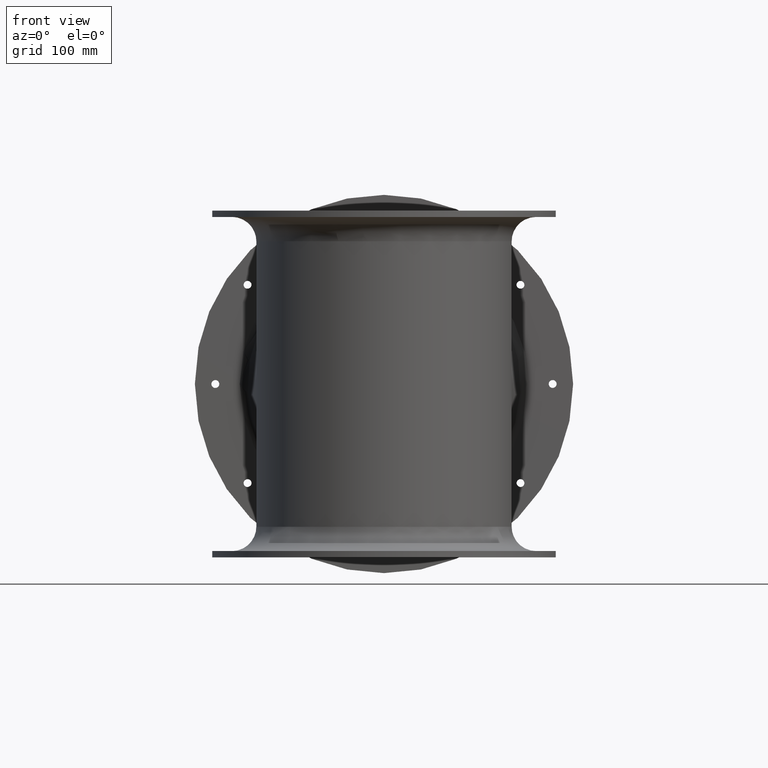
[diagram: clean part render]
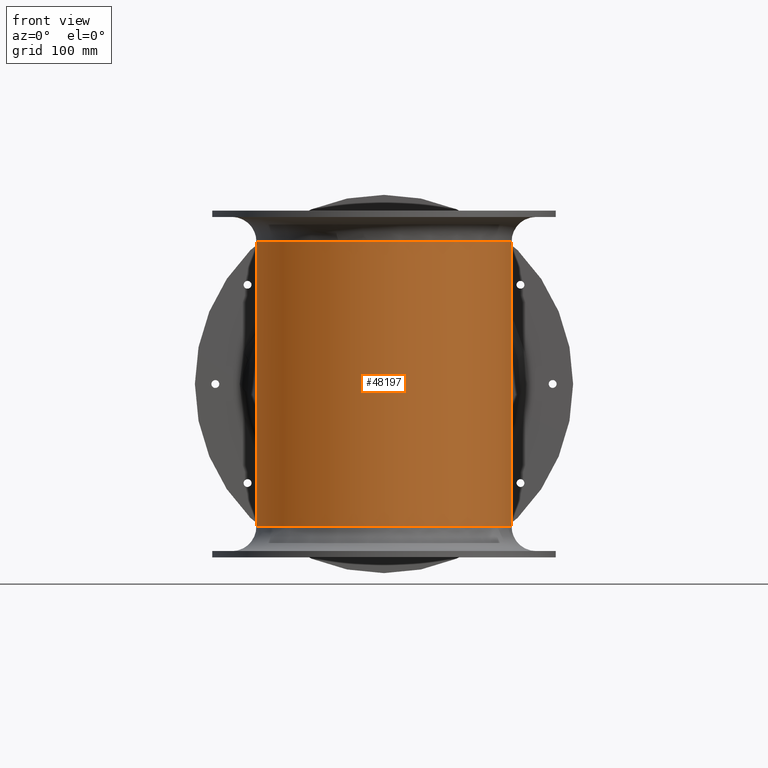
[diagram: same view with one face highlighted and labeled with its STEP entity id]
A machine part, front view. The second image highlights one B-rep face of the part: STEP entity #48197.
In plain terms, the highlighted cylindrical surface (bore or boss wall) has radius 202.5 mm, axis along (0, -0, 1).
Its self-contained STEP definition (entity closure, byte-faithful):
#4967=CIRCLE('',#50990,202.5);
#4968=CIRCLE('',#50991,202.5);
#11968=FACE_BOUND('',#15144,.T.);
#11969=FACE_BOUND('',#15145,.T.);
#12359=FACE_OUTER_BOUND('',#15143,.T.);
#15143=EDGE_LOOP('',(#30530));
#15144=EDGE_LOOP('',(#30531));
#15145=EDGE_LOOP('',(#30532));
#18287=B_SPLINE_CURVE_WITH_KNOTS('',3,(#69630,#69631,#69632,#69633,#69634,
#69635,#69636,#69637,#69638,#69639,#69640,#69641,#69642,#69643,#69644,#69645,
#69646,#69647,#69648,#69649,#69650,#69651,#69652,#69653,#69654,#69655,#69656,
#69657,#69658,#69659,#69660,#69661,#69662,#69663,#69664,#69665,#69666,#69667,
#69668,#69669,#69670,#69671,#69672,#69673,#69674,#69675,#69676,#69677,#69678,
#69679,#69680,#69681,#69682,#69683,#69684,#69685,#69686,#69687,#69688,#69689,
#69690,#69691,#69692,#69693,#69694,#69695,#69696,#69697,#69698,#69699,#69700,
#69701,#69702,#69703,#69704,#69705,#69706,#69707,#69708,#69709,#69710,#69711,
#69712,#69713,#69714,#69715,#69716,#69717,#69718,#69719,#69720,#69721,#69722,
#69723,#69724,#69725,#69726,#69727,#69728,#69729,#69730,#69731,#69732,#69733,
#69734,#69735,#69736,#69737,#69738,#69739,#69740,#69741,#69742,#69743,#69744,
#69745,#69746,#69747,#69748,#69749,#69750,#69751,#69752,#69753,#69754,#69755,
#69756,#69757,#69758,#69759,#69760,#69761,#69762,#69763,#69764,#69765,#69766,
#69767,#69768,#69769,#69770,#69771,#69772,#69773,#69774,#69775,#69776,#69777,
#69778,#69779,#69780,#69781,#69782,#69783,#69784,#69785,#69786,#69787,#69788,
#69789,#69790,#69791,#69792,#69793,#69794,#69795,#69796,#69797,#69798,#69799,
#69800,#69801,#69802,#69803,#69804,#69805,#69806,#69807,#69808,#69809,#69810,
#69811,#69812,#69813,#69814,#69815,#69816,#69817,#69818,#69819,#69820,#69821,
#69822,#69823,#69824,#69825,#69826,#69827,#69828,#69829,#69830,#69831,#69832,
#69833,#69834,#69835,#69836,#69837,#69838,#69839,#69840,#69841,#69842,#69843,
#69844,#69845,#69846,#69847,#69848,#69849,#69850,#69851,#69852,#69853,#69854,
#69855,#69856,#69857,#69858,#69859,#69860,#69861,#69862,#69863,#69864,#69865,
#69866,#69867,#69868,#69869,#69870,#69871,#69872,#69873,#69874,#69875,#69876,
#69877,#69878,#69879,#69880,#69881,#69882,#69883,#69884,#69885,#69886,#69887,
#69888,#69889,#69890,#69891,#69892,#69893,#69894,#69895,#69896,#69897,#69898,
#69899,#69900,#69901,#69902,#69903,#69904,#69905,#69906,#69907,#69908,#69909,
#69910,#69911,#69912,#69913,#69914,#69915,#69916,#69917,#69918,#69919,#69920,
#69921,#69922,#69923,#69924,#69925,#69926,#69927,#69928,#69929,#69930,#69931,
#69932,#69933,#69934,#69935,#69936,#69937,#69938,#69939,#69940,#69941,#69942,
#69943,#69944,#69945,#69946,#69947,#69948,#69949,#69950,#69951,#69952,#69953,
#69954,#69955,#69956,#69957,#69958,#69959,#69960,#69961,#69962,#69963,#69964,
#69965,#69966,#69967,#69968,#69969,#69970,#69971,#69972,#69973,#69974,#69975,
#69976,#69977,#69978,#69979,#69980,#69981,#69982,#69983,#69984,#69985,#69986,
#69987,#69988,#69989,#69990,#69991,#69992,#69993,#69994,#69995,#69996,#69997,
#69998,#69999,#70000,#70001,#70002,#70003,#70004,#70005,#70006,#70007,#70008,
#70009,#70010,#70011,#70012,#70013,#70014),.UNSPECIFIED.,.T.,.F.,(4,3,3,
3,3,3,3,3,3,3,3,3,3,3,3,3,3,3,3,3,3,3,3,3,3,3,3,3,3,3,3,3,3,3,3,3,3,3,3,
3,3,3,3,3,3,3,3,3,3,3,3,3,3,3,3,3,3,3,3,3,3,3,3,3,3,3,3,3,3,3,3,3,3,3,3,
3,3,3,3,3,3,3,3,3,3,3,3,3,3,3,3,3,3,3,3,3,3,3,3,3,3,3,3,3,3,3,3,3,3,3,3,
3,3,3,3,3,3,3,3,3,3,3,3,3,3,3,3,3,4),(-160.342906912036,-160.081610975274,
-159.806046325259,-159.70745696218,-159.627059865564,-158.911603294999,
-158.196065782003,-157.71663035812,-157.65844358391,-157.479094196927,-156.045520752024,
-154.613641021606,-151.752290572736,-149.810930225153,-148.890155718497,
-147.45892251172,-145.816008437067,-145.668549316929,-144.594002031974,
-143.161990087913,-137.436836950914,-136.959595278468,-136.665929451944,
-136.1641162625,-134.891639086557,-130.162442041686,-129.800813206733,-129.562154742946,
-127.892585473663,-126.461189080719,-126.039837570184,-125.983600632645,
-122.695283499125,-122.165629504571,-120.625039987267,-118.692210297802,
-118.34832113825,-116.439800674157,-116.069722114912,-114.530009733055,
-112.622185500934,-110.713585221901,-110.068461128252,-108.803075963811,
-106.894432287388,-103.077776392632,-102.68580357898,-101.884102439985,
-101.168158906038,-99.2597980532162,-95.4440953012599,-93.5352335895442,
-91.6495833604302,-91.6246814189812,-87.805743866731,-85.897824174083,-84.5253022285759,
-83.9893061310752,-83.7009996830874,-82.7160553985728,-82.2390318148518,
-81.7454708848339,-81.4439640252966,-81.025646101809,-80.8076057675436,
-80.531767047028,-80.287961013862,-80.1716033146539,-80.0854849546987,-79.8375311491397,
-79.5349982732622,-79.3190264793224,-78.8993080078128,-78.0180719655853,
-77.6264146846165,-76.3537563673086,-76.2634474649733,-75.636812081051,
-75.3979507631704,-74.4430331145185,-72.5348999443966,-69.6731482481115,
-68.9386351468239,-68.7183700297651,-64.9011242767384,-61.0844988520505,
-58.7703045195937,-57.2641197006221,-54.4022140550659,-53.4482350096057,
-51.6487655418366,-50.9021158366082,-48.3580124577464,-46.7305625843402,
-45.8116971581924,-43.9036909448839,-42.9208168368777,-41.9944043869412,
-40.7550662017537,-38.8470287143703,-38.1767120407175,-37.2227430335197,
-36.4198872014549,-34.3586547744628,-32.4507825263865,-31.5152553461049,
-30.5409726766878,-25.4522695863814,-24.2770105557074,-24.1785704467151,
-22.9049318856175,-17.1807867851427,-15.7491697433524,-14.2375590226819,
-11.4519378130212,-8.58974760449831,-7.63804363807765,-5.72603196125493,
-4.29487985096732,-3.23889387569538,-2.86323948060928,-2.77950123683371,
-1.47209831865792,-1.43167218082337,-1.27598788093155,-0.715991356617883,
-0.534179025333353,-0.212204773589796,0.),.UNSPECIFIED.);
#18689=VERTEX_POINT('',#69540);
#18692=VERTEX_POINT('',#70019);
#18693=VERTEX_POINT('',#70021);
#23263=EDGE_CURVE('',#18689,#18689,#18287,.T.);
#23265=EDGE_CURVE('',#18692,#18692,#4967,.T.);
#23266=EDGE_CURVE('',#18693,#18693,#4968,.T.);
#30530=ORIENTED_EDGE('',*,*,#23265,.F.);
#30531=ORIENTED_EDGE('',*,*,#23266,.T.);
#30532=ORIENTED_EDGE('',*,*,#23263,.F.);
#45257=CYLINDRICAL_SURFACE('',#50989,202.5);
#48197=ADVANCED_FACE('',(#12359,#11968,#11969),#45257,.T.);
#50989=AXIS2_PLACEMENT_3D('',#70018,#55992,#55993);
#50990=AXIS2_PLACEMENT_3D('',#70020,#55994,#55995);
#50991=AXIS2_PLACEMENT_3D('',#70022,#55996,#55997);
#55992=DIRECTION('center_axis',(3.33066907387543E-16,-1.9598292006493E-16,
1.));
#55993=DIRECTION('ref_axis',(1.,-9.99200722162641E-16,-3.33066907387544E-16));
#55994=DIRECTION('center_axis',(3.33066907387543E-16,-1.9598292006493E-16,
1.));
#55995=DIRECTION('ref_axis',(1.,-9.99200722162641E-16,-3.33066907387544E-16));
#55996=DIRECTION('center_axis',(3.33066907387543E-16,-1.9598292006493E-16,
1.));
#55997=DIRECTION('ref_axis',(1.,-9.99200722162641E-16,-3.33066907387544E-16));
#69540=CARTESIAN_POINT('',(-697.257227503305,516.280377813638,-216.1206322286));
#69630=CARTESIAN_POINT('Ctrl Pts',(-697.257227503275,516.280377814243,-216.120632228212));
#69631=CARTESIAN_POINT('Ctrl Pts',(-697.257227503263,516.280377814494,-215.226759886859));
#69632=CARTESIAN_POINT('Ctrl Pts',(-697.254672677007,516.332828295453,-214.331957878147));
#69633=CARTESIAN_POINT('Ctrl Pts',(-697.249581580822,516.434979875872,-213.444721295312));
#69634=CARTESIAN_POINT('Ctrl Pts',(-697.244212472691,516.542709696915,-212.509034956446));
#69635=CARTESIAN_POINT('Ctrl Pts',(-697.236066065964,516.704740011279,-211.578498886824));
#69636=CARTESIAN_POINT('Ctrl Pts',(-697.225100581869,516.914738041926,-210.661486591728));
#69637=CARTESIAN_POINT('Ctrl Pts',(-697.221177436819,516.98986949325,-210.333405112106));
#69638=CARTESIAN_POINT('Ctrl Pts',(-697.216892084135,517.071133220858,-210.007051641859));
#69639=CARTESIAN_POINT('Ctrl Pts',(-697.212259599667,517.157847090905,-209.682636379619));
#69640=CARTESIAN_POINT('Ctrl Pts',(-697.208481927413,517.228560027578,-209.418084055032));
#69641=CARTESIAN_POINT('Ctrl Pts',(-697.204470206979,517.302957156327,-209.154714933568));
#69642=CARTESIAN_POINT('Ctrl Pts',(-697.200231239416,517.380696508449,-208.892613591261));
#69643=CARTESIAN_POINT('Ctrl Pts',(-697.162508519025,518.072501717946,-206.560164592479));
#69644=CARTESIAN_POINT('Ctrl Pts',(-697.10661367971,519.029198560302,-204.328214727127));
#69645=CARTESIAN_POINT('Ctrl Pts',(-697.031516553899,520.130576948674,-202.160969686035));
#69646=CARTESIAN_POINT('Ctrl Pts',(-696.956410932054,521.232079940337,-199.993479455943));
#69647=CARTESIAN_POINT('Ctrl Pts',(-696.862005500284,522.478155201543,-197.890678223382));
#69648=CARTESIAN_POINT('Ctrl Pts',(-696.748959839294,523.786530942337,-195.850105959314));
#69649=CARTESIAN_POINT('Ctrl Pts',(-696.673215250912,524.663188932301,-194.48285041978));
#69650=CARTESIAN_POINT('Ctrl Pts',(-696.589248361336,525.567819467301,-193.143516657119));
#69651=CARTESIAN_POINT('Ctrl Pts',(-696.497260035757,526.488451098012,-191.830134326675));
#69652=CARTESIAN_POINT('Ctrl Pts',(-696.486095854589,526.600183736357,-191.670735422662));
#69653=CARTESIAN_POINT('Ctrl Pts',(-696.474811987746,526.712174697458,-191.511690367153));
#69654=CARTESIAN_POINT('Ctrl Pts',(-696.463409160411,526.824403862311,-191.352995040592));
#69655=CARTESIAN_POINT('Ctrl Pts',(-696.428262168327,527.170328381953,-190.86384763686));
#69656=CARTESIAN_POINT('Ctrl Pts',(-696.391985301662,527.518515927331,-190.37802303937));
#69657=CARTESIAN_POINT('Ctrl Pts',(-696.354531258763,527.869057724736,-189.893971529857));
#69658=CARTESIAN_POINT('Ctrl Pts',(-696.055154036422,530.671004363856,-186.024856604664));
#69659=CARTESIAN_POINT('Ctrl Pts',(-695.679356927366,533.623346504416,-182.26907170148));
#69660=CARTESIAN_POINT('Ctrl Pts',(-695.224267956936,536.632813399577,-178.572714386483));
#69661=CARTESIAN_POINT('Ctrl Pts',(-694.769716657445,539.638724719899,-174.880724182183));
#69662=CARTESIAN_POINT('Ctrl Pts',(-694.236908884312,542.701679636403,-171.247992504076));
#69663=CARTESIAN_POINT('Ctrl Pts',(-693.623449771287,545.791401300273,-167.646156314791));
#69664=CARTESIAN_POINT('Ctrl Pts',(-692.397563636351,551.965646442509,-160.448543709466));
#69665=CARTESIAN_POINT('Ctrl Pts',(-690.848696188197,558.246651552957,-153.374317144781));
#69666=CARTESIAN_POINT('Ctrl Pts',(-688.966142017064,564.524071094062,-146.385276333287));
#69667=CARTESIAN_POINT('Ctrl Pts',(-687.68887239025,568.783155606782,-141.64337318597));
#69668=CARTESIAN_POINT('Ctrl Pts',(-686.258923939882,573.040835204933,-136.940662162466));
#69669=CARTESIAN_POINT('Ctrl Pts',(-684.674226568624,577.278845479364,-132.285152186525));
#69670=CARTESIAN_POINT('Ctrl Pts',(-683.922614977279,579.288906014753,-130.077074275244));
#69671=CARTESIAN_POINT('Ctrl Pts',(-683.135884889896,581.295456528332,-127.878463004284));
#69672=CARTESIAN_POINT('Ctrl Pts',(-682.313941221743,583.296475336021,-125.690344687132));
#69673=CARTESIAN_POINT('Ctrl Pts',(-681.036328664645,586.406818361641,-122.289177981035));
#69674=CARTESIAN_POINT('Ctrl Pts',(-679.673533592299,589.503755378052,-118.913365891202));
#69675=CARTESIAN_POINT('Ctrl Pts',(-678.227915300939,592.575834831544,-115.571380351261));
#69676=CARTESIAN_POINT('Ctrl Pts',(-676.568488572851,596.102278005653,-111.735111702057));
#69677=CARTESIAN_POINT('Ctrl Pts',(-674.800251933672,599.59612560734,-107.943412143543));
#69678=CARTESIAN_POINT('Ctrl Pts',(-672.917784721667,603.059499357728,-104.192238591499));
#69679=CARTESIAN_POINT('Ctrl Pts',(-672.74882460193,603.370353135063,-103.855553453788));
#69680=CARTESIAN_POINT('Ctrl Pts',(-672.578924203415,603.680995218203,-103.519153899755));
#69681=CARTESIAN_POINT('Ctrl Pts',(-672.408077799914,603.991427301452,-103.18303595263));
#69682=CARTESIAN_POINT('Ctrl Pts',(-671.163105370583,606.25357257877,-100.733715577136));
#69683=CARTESIAN_POINT('Ctrl Pts',(-669.867947546818,608.504591770511,-98.299350094895));
#69684=CARTESIAN_POINT('Ctrl Pts',(-668.519539871023,610.745922949875,-95.8777837390035));
#69685=CARTESIAN_POINT('Ctrl Pts',(-666.722563670686,613.732867372316,-92.6506461401987));
#69686=CARTESIAN_POINT('Ctrl Pts',(-664.830856553981,616.702514116849,-89.4462371942141));
#69687=CARTESIAN_POINT('Ctrl Pts',(-662.844932868626,619.644761523188,-86.2744257389922));
#69688=CARTESIAN_POINT('Ctrl Pts',(-654.905252432154,631.407803750659,-73.593591351995));
#69689=CARTESIAN_POINT('Ctrl Pts',(-645.458052164794,642.732430302758,-61.4344539598268));
#69690=CARTESIAN_POINT('Ctrl Pts',(-634.463428603082,653.176048294548,-50.2349377768812));
#69691=CARTESIAN_POINT('Ctrl Pts',(-633.546930404528,654.046615351449,-49.3013599832685));
#69692=CARTESIAN_POINT('Ctrl Pts',(-632.61968833936,654.911062031034,-48.3744442906045));
#69693=CARTESIAN_POINT('Ctrl Pts',(-631.681807013742,655.769019580471,-47.4546667275533));
#69694=CARTESIAN_POINT('Ctrl Pts',(-631.104691245,656.296955063529,-46.8886909256342));
#69695=CARTESIAN_POINT('Ctrl Pts',(-630.52354790769,656.822434678858,-46.3254178963941));
#69696=CARTESIAN_POINT('Ctrl Pts',(-629.938153197321,657.345591855669,-45.7646955931267));
#69697=CARTESIAN_POINT('Ctrl Pts',(-628.937836646463,658.239557539669,-44.8065390015853));
#69698=CARTESIAN_POINT('Ctrl Pts',(-627.924936100867,659.126902745414,-43.8556738990506));
#69699=CARTESIAN_POINT('Ctrl Pts',(-626.89826739942,660.008207773159,-42.9113528276939));
#69700=CARTESIAN_POINT('Ctrl Pts',(-624.294883276945,662.242984691025,-40.5167824271104));
#69701=CARTESIAN_POINT('Ctrl Pts',(-621.602857459468,664.438767515243,-38.1642917248213));
#69702=CARTESIAN_POINT('Ctrl Pts',(-618.827282293965,666.583766841819,-35.8671305764916));
#69703=CARTESIAN_POINT('Ctrl Pts',(-608.511779494643,674.555716884045,-27.3296668642467));
#69704=CARTESIAN_POINT('Ctrl Pts',(-597.038036066904,681.821301904723,-19.5575522294114));
#69705=CARTESIAN_POINT('Ctrl Pts',(-584.55368607305,687.97701485389,-12.9754416934975));
#69706=CARTESIAN_POINT('Ctrl Pts',(-583.599041785535,688.447725480026,-12.4721256036728));
#69707=CARTESIAN_POINT('Ctrl Pts',(-582.638167058162,688.912151167305,-11.9755880313665));
#69708=CARTESIAN_POINT('Ctrl Pts',(-581.671159635096,689.370097771833,-11.4860492095826));
#69709=CARTESIAN_POINT('Ctrl Pts',(-581.032979037331,689.672321550939,-11.1629760144211));
#69710=CARTESIAN_POINT('Ctrl Pts',(-580.39212820257,689.971725280352,-10.8429510458017));
#69711=CARTESIAN_POINT('Ctrl Pts',(-579.74813292893,690.268479247797,-10.5257558129746));
#69712=CARTESIAN_POINT('Ctrl Pts',(-575.242972284826,692.344463885943,-8.30677139193657));
#69713=CARTESIAN_POINT('Ctrl Pts',(-570.583491070154,694.289813215606,-6.2263557495794));
#69714=CARTESIAN_POINT('Ctrl Pts',(-565.810596140456,696.071257425622,-4.32246743557627));
#69715=CARTESIAN_POINT('Ctrl Pts',(-561.718579886942,697.598569207985,-2.69017884751229));
#69716=CARTESIAN_POINT('Ctrl Pts',(-557.543298553905,699.005911195514,-1.1876403946383));
#69717=CARTESIAN_POINT('Ctrl Pts',(-553.29835310114,700.282014783239,0.17632524674454));
#69718=CARTESIAN_POINT('Ctrl Pts',(-552.048794147745,700.657653688673,0.577827574224976));
#69719=CARTESIAN_POINT('Ctrl Pts',(-550.793212975774,701.021937506695,0.967328054689069));
#69720=CARTESIAN_POINT('Ctrl Pts',(-549.531297095714,701.374789906948,1.34442474521418));
#69721=CARTESIAN_POINT('Ctrl Pts',(-549.362871724612,701.42188440619,1.39475508105239));
#69722=CARTESIAN_POINT('Ctrl Pts',(-549.194315995645,701.468780111037,1.44487077499946));
#69723=CARTESIAN_POINT('Ctrl Pts',(-549.025629213192,701.515476629167,1.49477066801659));
#69724=CARTESIAN_POINT('Ctrl Pts',(-539.162082917579,704.24594111322,4.41254464985427));
#69725=CARTESIAN_POINT('Ctrl Pts',(-528.845830134125,706.283922661835,6.58870728316398));
#69726=CARTESIAN_POINT('Ctrl Pts',(-518.392162752041,707.499603967,7.88797902769534));
#69727=CARTESIAN_POINT('Ctrl Pts',(-516.708375434138,707.69541551231,8.09725460591967));
#69728=CARTESIAN_POINT('Ctrl Pts',(-515.018622023611,707.870482130194,8.28452461113706));
#69729=CARTESIAN_POINT('Ctrl Pts',(-513.324494751934,708.024412374118,8.44905118196035));
#69730=CARTESIAN_POINT('Ctrl Pts',(-508.396834916344,708.472144898794,8.92760494146088));
#69731=CARTESIAN_POINT('Ctrl Pts',(-503.431955168454,708.740427839059,9.21338984145034));
#69732=CARTESIAN_POINT('Ctrl Pts',(-498.469613300467,708.825449651635,9.30338279208922));
#69733=CARTESIAN_POINT('Ctrl Pts',(-492.243839605406,708.932118353293,9.41628830318329));
#69734=CARTESIAN_POINT('Ctrl Pts',(-485.995009047588,708.750108188911,9.22346260966002));
#69735=CARTESIAN_POINT('Ctrl Pts',(-479.802557790707,708.284037221046,8.72592312640258));
#69736=CARTESIAN_POINT('Ctrl Pts',(-478.700796538847,708.201113850041,8.63740087549033));
#69737=CARTESIAN_POINT('Ctrl Pts',(-477.59989499451,708.109185502019,8.53926983377843));
#69738=CARTESIAN_POINT('Ctrl Pts',(-476.500232822539,708.008298586159,8.43151307443215));
#69739=CARTESIAN_POINT('Ctrl Pts',(-470.39731361006,707.448395087811,7.83348323067521));
#69740=CARTESIAN_POINT('Ctrl Pts',(-464.332625786008,706.610970167886,6.93838213522046));
#69741=CARTESIAN_POINT('Ctrl Pts',(-458.377518990521,705.51590289406,5.76887587276058));
#69742=CARTESIAN_POINT('Ctrl Pts',(-457.222772481646,705.303559916031,5.5420985335688));
#69743=CARTESIAN_POINT('Ctrl Pts',(-456.072138184755,705.081590037866,5.30502509042471));
#69744=CARTESIAN_POINT('Ctrl Pts',(-454.925821489709,704.850156506472,5.0578005516784));
#69745=CARTESIAN_POINT('Ctrl Pts',(-450.156569219361,703.88727696384,4.02922250008235));
#69746=CARTESIAN_POINT('Ctrl Pts',(-445.448528394885,702.757861539675,2.82274270512747));
#69747=CARTESIAN_POINT('Ctrl Pts',(-440.809802354673,701.469507757147,1.4459157149436));
#69748=CARTESIAN_POINT('Ctrl Pts',(-435.062057483634,699.873136516117,-0.260080759634924));
#69749=CARTESIAN_POINT('Ctrl Pts',(-429.421156478192,698.031336521754,-2.2276543748093));
#69750=CARTESIAN_POINT('Ctrl Pts',(-423.947378745246,695.980291964197,-4.41965332026488));
#69751=CARTESIAN_POINT('Ctrl Pts',(-418.471374440148,693.928413101903,-6.61254390656662));
#69752=CARTESIAN_POINT('Ctrl Pts',(-413.162319105302,691.667791607495,-9.03000104300617));
#69753=CARTESIAN_POINT('Ctrl Pts',(-408.051483308909,689.237913983325,-11.6277754784551));
#69754=CARTESIAN_POINT('Ctrl Pts',(-406.323974753475,688.416593449534,-12.5058466474593));
#69755=CARTESIAN_POINT('Ctrl Pts',(-404.619072122022,687.576024371686,-13.404511402225));
#69756=CARTESIAN_POINT('Ctrl Pts',(-402.935781790985,686.716795991585,-14.3233007980696));
#69757=CARTESIAN_POINT('Ctrl Pts',(-399.634074982462,685.031453813621,-16.1254695314864));
#69758=CARTESIAN_POINT('Ctrl Pts',(-396.410757008595,683.272033276337,-18.0075538199388));
#69759=CARTESIAN_POINT('Ctrl Pts',(-393.259121703285,681.440630193166,-19.9668627908504));
#69760=CARTESIAN_POINT('Ctrl Pts',(-388.505352681085,678.67823340529,-22.9221864208232));
#69761=CARTESIAN_POINT('Ctrl Pts',(-383.915140571764,675.751375157426,-26.0532394305556));
#69762=CARTESIAN_POINT('Ctrl Pts',(-379.506473182695,672.690233380637,-29.3296485319996));
#69763=CARTESIAN_POINT('Ctrl Pts',(-370.690596973654,666.568962579079,-35.8813827635546));
#69764=CARTESIAN_POINT('Ctrl Pts',(-362.601836381584,659.909332482535,-43.0146162181211));
#69765=CARTESIAN_POINT('Ctrl Pts',(-355.288699373491,652.939041075464,-50.4886839152465));
#69766=CARTESIAN_POINT('Ctrl Pts',(-354.537635885263,652.223188032869,-51.2562750802471));
#69767=CARTESIAN_POINT('Ctrl Pts',(-353.794720397658,651.504087799076,-52.0274574506805));
#69768=CARTESIAN_POINT('Ctrl Pts',(-353.059606024598,650.781624120593,-52.8023656934187));
#69769=CARTESIAN_POINT('Ctrl Pts',(-351.556078204174,649.303970738139,-54.3872838285134));
#69770=CARTESIAN_POINT('Ctrl Pts',(-350.084381883779,647.811498850562,-55.9886072321534));
#69771=CARTESIAN_POINT('Ctrl Pts',(-348.641845406717,646.302879325626,-57.6075929529576));
#69772=CARTESIAN_POINT('Ctrl Pts',(-347.353616398423,644.955636142939,-59.0533965098981));
#69773=CARTESIAN_POINT('Ctrl Pts',(-346.088670322367,643.595497437201,-60.5132860832147));
#69774=CARTESIAN_POINT('Ctrl Pts',(-344.847150810509,642.223444682952,-61.9864392457314));
#69775=CARTESIAN_POINT('Ctrl Pts',(-341.537857378691,638.566212457139,-65.9131564968218));
#69776=CARTESIAN_POINT('Ctrl Pts',(-338.395000903268,634.824241429661,-69.934124886938));
#69777=CARTESIAN_POINT('Ctrl Pts',(-335.419046850743,631.014602922636,-74.031682623307));
#69778=CARTESIAN_POINT('Ctrl Pts',(-329.468727732047,623.397360033944,-82.2246102385667));
#69779=CARTESIAN_POINT('Ctrl Pts',(-324.185660221192,615.510279412486,-90.7238122951142));
#69780=CARTESIAN_POINT('Ctrl Pts',(-319.546500669182,607.459597769196,-99.430261345612));
#69781=CARTESIAN_POINT('Ctrl Pts',(-317.225692519535,603.432125258605,-103.7857911963));
#69782=CARTESIAN_POINT('Ctrl Pts',(-315.066247072778,599.363475319532,-108.193158057072));
#69783=CARTESIAN_POINT('Ctrl Pts',(-313.069780644655,595.278863492168,-112.631120063657));
#69784=CARTESIAN_POINT('Ctrl Pts',(-311.097590959826,591.243919954437,-117.015117093487));
#69785=CARTESIAN_POINT('Ctrl Pts',(-309.283838639874,587.193732359801,-121.428980142706));
#69786=CARTESIAN_POINT('Ctrl Pts',(-307.616536728959,583.124038382368,-125.879493449313));
#69787=CARTESIAN_POINT('Ctrl Pts',(-307.594518300555,583.07029390761,-125.938267033124));
#69788=CARTESIAN_POINT('Ctrl Pts',(-307.572525166151,583.016545261566,-125.997048330777));
#69789=CARTESIAN_POINT('Ctrl Pts',(-307.550557303811,582.962792429531,-126.055837353372));
#69790=CARTESIAN_POINT('Ctrl Pts',(-304.181587273736,574.719310321183,-135.071664754093));
#69791=CARTESIAN_POINT('Ctrl Pts',(-301.408174645574,566.376097017894,-144.268237772602));
#69792=CARTESIAN_POINT('Ctrl Pts',(-299.208138936492,558.042292267241,-153.653722888312));
#69793=CARTESIAN_POINT('Ctrl Pts',(-298.10901348695,553.878770350239,-158.342658392578));
#69794=CARTESIAN_POINT('Ctrl Pts',(-297.153385894263,549.717657264329,-163.078918161569));
#69795=CARTESIAN_POINT('Ctrl Pts',(-296.34073634828,545.604438275676,-167.871412779288));
#69796=CARTESIAN_POINT('Ctrl Pts',(-295.756131377659,542.645465028345,-171.319044281752));
#69797=CARTESIAN_POINT('Ctrl Pts',(-295.245472196103,539.711292400477,-174.795794691275));
#69798=CARTESIAN_POINT('Ctrl Pts',(-294.80683359862,536.829789547561,-178.331343174923));
#69799=CARTESIAN_POINT('Ctrl Pts',(-294.635536828296,535.704507515345,-179.712042548047));
#69800=CARTESIAN_POINT('Ctrl Pts',(-294.475317144032,534.588174394351,-181.101718696434));
#69801=CARTESIAN_POINT('Ctrl Pts',(-294.325840594861,533.482416512275,-182.501861437363));
#69802=CARTESIAN_POINT('Ctrl Pts',(-294.245438791285,532.887641421929,-183.254982928724));
#69803=CARTESIAN_POINT('Ctrl Pts',(-294.168146336466,532.295925502157,-184.011132511595));
#69804=CARTESIAN_POINT('Ctrl Pts',(-294.094005799825,531.708414075421,-184.771029294196));
#69805=CARTESIAN_POINT('Ctrl Pts',(-293.8407187217,529.701292743625,-187.367072490829));
#69806=CARTESIAN_POINT('Ctrl Pts',(-293.623903295199,527.737704107688,-190.012124870294));
#69807=CARTESIAN_POINT('Ctrl Pts',(-293.442628730554,525.864932667358,-192.733881957515));
#69808=CARTESIAN_POINT('Ctrl Pts',(-293.354834685932,524.957920810949,-194.052070549679));
#69809=CARTESIAN_POINT('Ctrl Pts',(-293.275333990889,524.072226389715,-195.388267085493));
#69810=CARTESIAN_POINT('Ctrl Pts',(-293.204155074178,523.220562298817,-196.747470824976));
#69811=CARTESIAN_POINT('Ctrl Pts',(-293.130508542794,522.339372908793,-198.153795133954));
#69812=CARTESIAN_POINT('Ctrl Pts',(-293.065799677112,521.494619560397,-199.584751105357));
#69813=CARTESIAN_POINT('Ctrl Pts',(-293.009991479212,520.709288972542,-201.051712114824));
#69814=CARTESIAN_POINT('Ctrl Pts',(-292.97589932673,520.229545652434,-201.947850322141));
#69815=CARTESIAN_POINT('Ctrl Pts',(-292.945115553994,519.772073236636,-202.85818402579));
#69816=CARTESIAN_POINT('Ctrl Pts',(-292.917499244143,519.342358381658,-203.784734529921));
#69817=CARTESIAN_POINT('Ctrl Pts',(-292.879183706616,518.746161578368,-205.070253152911));
#69818=CARTESIAN_POINT('Ctrl Pts',(-292.847012020579,518.203448032348,-206.387002639643));
#69819=CARTESIAN_POINT('Ctrl Pts',(-292.821344418068,517.747943964932,-207.733559865433));
#69820=CARTESIAN_POINT('Ctrl Pts',(-292.807965663975,517.51052105393,-208.435427443018));
#69821=CARTESIAN_POINT('Ctrl Pts',(-292.79627303964,517.295547499469,-209.147058526694));
#69822=CARTESIAN_POINT('Ctrl Pts',(-292.7863366142,517.108698487599,-209.867647842154));
#69823=CARTESIAN_POINT('Ctrl Pts',(-292.773766229507,516.872319321619,-210.779251814251));
#69824=CARTESIAN_POINT('Ctrl Pts',(-292.763997986489,516.680999728265,-211.705206747662));
#69825=CARTESIAN_POINT('Ctrl Pts',(-292.757016608002,516.542400884546,-212.637196152517));
#69826=CARTESIAN_POINT('Ctrl Pts',(-292.750845965273,516.419897291775,-213.460955193038));
#69827=CARTESIAN_POINT('Ctrl Pts',(-292.746803245902,516.337638853325,-214.292969517544));
#69828=CARTESIAN_POINT('Ctrl Pts',(-292.745040554852,516.301796155704,-215.126137604619));
#69829=CARTESIAN_POINT('Ctrl Pts',(-292.744199301368,516.284690041575,-215.523771413787));
#69830=CARTESIAN_POINT('Ctrl Pts',(-292.74385443996,516.277648822752,-215.922152112048));
#69831=CARTESIAN_POINT('Ctrl Pts',(-292.744024048779,516.281104868457,-216.32040830759));
#69832=CARTESIAN_POINT('Ctrl Pts',(-292.744149579221,516.283662748082,-216.615164654918));
#69833=CARTESIAN_POINT('Ctrl Pts',(-292.744557017788,516.29196855135,-216.909852988603));
#69834=CARTESIAN_POINT('Ctrl Pts',(-292.745234059132,516.305730107016,-217.204093534794));
#69835=CARTESIAN_POINT('Ctrl Pts',(-292.747183410904,516.345352669494,-218.051277145999));
#69836=CARTESIAN_POINT('Ctrl Pts',(-292.751491802022,516.432949563155,-218.897080900722));
#69837=CARTESIAN_POINT('Ctrl Pts',(-292.758007542418,516.562054549307,-219.734083175255));
#69838=CARTESIAN_POINT('Ctrl Pts',(-292.76595751389,516.719577853548,-220.75532463053));
#69839=CARTESIAN_POINT('Ctrl Pts',(-292.777264168473,516.940253175571,-221.76954313252));
#69840=CARTESIAN_POINT('Ctrl Pts',(-292.791933996641,517.213442600393,-222.765143802801));
#69841=CARTESIAN_POINT('Ctrl Pts',(-292.802406475366,517.408466727914,-223.475881973602));
#69842=CARTESIAN_POINT('Ctrl Pts',(-292.814598350277,517.6302212582,-224.177140752706));
#69843=CARTESIAN_POINT('Ctrl Pts',(-292.828456271224,517.873459167714,-224.86918705782));
#69844=CARTESIAN_POINT('Ctrl Pts',(-292.855387683385,518.346166467739,-226.214106281287));
#69845=CARTESIAN_POINT('Ctrl Pts',(-292.888804292307,518.902584577359,-227.52238200085));
#69846=CARTESIAN_POINT('Ctrl Pts',(-292.928256462743,519.508673303933,-228.801279471466));
#69847=CARTESIAN_POINT('Ctrl Pts',(-293.011089782915,520.781210175432,-231.486437790486));
#69848=CARTESIAN_POINT('Ctrl Pts',(-293.120735802861,522.272938679204,-234.041753762422));
#69849=CARTESIAN_POINT('Ctrl Pts',(-293.260518311942,523.881894662922,-236.538118295759));
#69850=CARTESIAN_POINT('Ctrl Pts',(-293.322643366764,524.596980401119,-237.647604629253));
#69851=CARTESIAN_POINT('Ctrl Pts',(-293.390725230658,525.336204496177,-238.743724854482));
#69852=CARTESIAN_POINT('Ctrl Pts',(-293.464604791403,526.09065213618,-239.831142097151));
#69853=CARTESIAN_POINT('Ctrl Pts',(-293.704670384535,528.542168067783,-243.364615533015));
#69854=CARTESIAN_POINT('Ctrl Pts',(-294.007296997462,531.154621836827,-246.805690775106));
#69855=CARTESIAN_POINT('Ctrl Pts',(-294.367634446083,533.789814093354,-250.13084832623));
#69856=CARTESIAN_POINT('Ctrl Pts',(-294.393204293867,533.976809547588,-250.366804296855));
#69857=CARTESIAN_POINT('Ctrl Pts',(-294.419056064251,534.163919220038,-250.602179465878));
#69858=CARTESIAN_POINT('Ctrl Pts',(-294.445192588321,534.351153953045,-250.837031648373));
#69859=CARTESIAN_POINT('Ctrl Pts',(-294.626548693547,535.650338261209,-252.466623900489));
#69860=CARTESIAN_POINT('Ctrl Pts',(-294.821920126315,536.957986428715,-254.073354557918));
#69861=CARTESIAN_POINT('Ctrl Pts',(-295.03282269048,538.279057149057,-255.676627770403));
#69862=CARTESIAN_POINT('Ctrl Pts',(-295.11321467873,538.78262381856,-256.28776458502));
#69863=CARTESIAN_POINT('Ctrl Pts',(-295.195870307085,539.288139604974,-256.898400256868));
#69864=CARTESIAN_POINT('Ctrl Pts',(-295.28071279756,539.794864655793,-257.507484730457));
#69865=CARTESIAN_POINT('Ctrl Pts',(-295.619895350132,541.82064554964,-259.942477212749));
#69866=CARTESIAN_POINT('Ctrl Pts',(-295.994065872341,543.865751286844,-262.352669298201));
#69867=CARTESIAN_POINT('Ctrl Pts',(-296.403826843419,545.922431418631,-264.748259445115));
#69868=CARTESIAN_POINT('Ctrl Pts',(-297.222618392449,550.032125679003,-269.535169633441));
#69869=CARTESIAN_POINT('Ctrl Pts',(-298.183856316665,554.187989711491,-274.263769390239));
#69870=CARTESIAN_POINT('Ctrl Pts',(-299.290157871336,558.351989689616,-278.949191196636));
#69871=CARTESIAN_POINT('Ctrl Pts',(-300.949350426791,564.597011885824,-285.976223697418));
#69872=CARTESIAN_POINT('Ctrl Pts',(-302.934937415248,570.860273478803,-292.906098897726));
#69873=CARTESIAN_POINT('Ctrl Pts',(-305.248106557721,577.06752798038,-299.724505753931));
#69874=CARTESIAN_POINT('Ctrl Pts',(-305.841817410708,578.660716432178,-301.474555966985));
#69875=CARTESIAN_POINT('Ctrl Pts',(-306.457004228545,580.250252452624,-303.217269869763));
#69876=CARTESIAN_POINT('Ctrl Pts',(-307.09443861772,581.837093920793,-304.954261363021));
#69877=CARTESIAN_POINT('Ctrl Pts',(-307.285591859375,582.312954489008,-305.475148783438));
#69878=CARTESIAN_POINT('Ctrl Pts',(-307.478776110034,582.788645330784,-305.995600801722));
#69879=CARTESIAN_POINT('Ctrl Pts',(-307.674017450449,583.264192816612,-306.515662674464));
#69880=CARTESIAN_POINT('Ctrl Pts',(-311.057595329071,591.50554144629,-315.528455991644));
#69881=CARTESIAN_POINT('Ctrl Pts',(-315.060009791661,599.7032968236,-324.424021451407));
#69882=CARTESIAN_POINT('Ctrl Pts',(-319.70963485041,607.742170268497,-333.116386286016));
#69883=CARTESIAN_POINT('Ctrl Pts',(-324.358504313534,615.779737341907,-341.807338552354));
#69884=CARTESIAN_POINT('Ctrl Pts',(-329.655082854496,623.658573960062,-350.295051803324));
#69885=CARTESIAN_POINT('Ctrl Pts',(-335.60232635761,631.248871533366,-358.459540149564));
#69886=CARTESIAN_POINT('Ctrl Pts',(-339.208411754311,635.851215664959,-363.410042374923));
#69887=CARTESIAN_POINT('Ctrl Pts',(-343.05272809366,640.348010366032,-368.241754293611));
#69888=CARTESIAN_POINT('Ctrl Pts',(-347.152137802382,644.728139210768,-372.943085982997));
#69889=CARTESIAN_POINT('Ctrl Pts',(-349.820223443862,647.578929863288,-376.002930318536));
#69890=CARTESIAN_POINT('Ctrl Pts',(-352.600073463159,650.38405092296,-379.011485869253));
#69891=CARTESIAN_POINT('Ctrl Pts',(-355.497865752857,653.13811715396,-381.964573021954));
#69892=CARTESIAN_POINT('Ctrl Pts',(-361.003968330094,658.371125477678,-387.575741510496));
#69893=CARTESIAN_POINT('Ctrl Pts',(-366.936814531898,663.418336823004,-392.986531543705));
#69894=CARTESIAN_POINT('Ctrl Pts',(-373.276235180286,668.186642806878,-398.090977956028));
#69895=CARTESIAN_POINT('Ctrl Pts',(-375.38939864824,669.776095624101,-399.792478815636));
#69896=CARTESIAN_POINT('Ctrl Pts',(-377.547723884378,671.334648148061,-401.459958680179));
#69897=CARTESIAN_POINT('Ctrl Pts',(-379.747825696867,672.857556339829,-403.08975259729));
#69898=CARTESIAN_POINT('Ctrl Pts',(-383.897828840435,675.730184209741,-406.163996634992));
#69899=CARTESIAN_POINT('Ctrl Pts',(-388.196000932635,678.476401022377,-409.104114713296));
#69900=CARTESIAN_POINT('Ctrl Pts',(-392.654145185595,681.087679733065,-411.897543824993));
#69901=CARTESIAN_POINT('Ctrl Pts',(-394.503952671612,682.171171570257,-413.056614906877));
#69902=CARTESIAN_POINT('Ctrl Pts',(-396.383009445719,683.232359520656,-414.191507106805));
#69903=CARTESIAN_POINT('Ctrl Pts',(-398.292312752061,684.270189063948,-415.301128083549));
#69904=CARTESIAN_POINT('Ctrl Pts',(-404.797994009182,687.806446601163,-419.082004787074));
#69905=CARTESIAN_POINT('Ctrl Pts',(-411.656541521614,691.06892398192,-422.569118924341));
#69906=CARTESIAN_POINT('Ctrl Pts',(-418.782237791898,693.963827394761,-425.664742294358));
#69907=CARTESIAN_POINT('Ctrl Pts',(-423.340509122127,695.815682249361,-427.644996675333));
#69908=CARTESIAN_POINT('Ctrl Pts',(-428.007574253797,697.518130387225,-429.46513487056));
#69909=CARTESIAN_POINT('Ctrl Pts',(-432.774759076611,699.057510317497,-431.110144650347));
#69910=CARTESIAN_POINT('Ctrl Pts',(-435.466332798984,699.926651062626,-432.038924477622));
#69911=CARTESIAN_POINT('Ctrl Pts',(-438.194225403403,700.74524007182,-432.913404286056));
#69912=CARTESIAN_POINT('Ctrl Pts',(-440.956653315527,701.510234439971,-433.730355162486));
#69913=CARTESIAN_POINT('Ctrl Pts',(-446.692781229543,703.09873038948,-435.426737792456));
#69914=CARTESIAN_POINT('Ctrl Pts',(-452.578325710928,704.454615697008,-436.874815891194));
#69915=CARTESIAN_POINT('Ctrl Pts',(-458.544881764426,705.546606060461,-438.042111513795));
#69916=CARTESIAN_POINT('Ctrl Pts',(-461.618442750782,706.109124697426,-438.643422262073));
#69917=CARTESIAN_POINT('Ctrl Pts',(-464.713404412672,706.601974317893,-439.170286897882));
#69918=CARTESIAN_POINT('Ctrl Pts',(-467.823351826621,707.023166719292,-439.620378113195));
#69919=CARTESIAN_POINT('Ctrl Pts',(-470.754646871899,707.420163528239,-440.044613630314));
#69920=CARTESIAN_POINT('Ctrl Pts',(-473.706045454314,707.754397087434,-440.402076485214));
#69921=CARTESIAN_POINT('Ctrl Pts',(-476.670218688043,708.023821450345,-440.689737145055));
#69922=CARTESIAN_POINT('Ctrl Pts',(-480.635637197178,708.384252596319,-441.07456448642));
#69923=CARTESIAN_POINT('Ctrl Pts',(-484.623978110015,708.628507471356,-441.334387213552));
#69924=CARTESIAN_POINT('Ctrl Pts',(-488.613151838446,708.754400595573,-441.468177428509));
#69925=CARTESIAN_POINT('Ctrl Pts',(-494.754730552394,708.948220816138,-441.674155706782));
#69926=CARTESIAN_POINT('Ctrl Pts',(-500.926780650865,708.861437999619,-441.583183472444));
#69927=CARTESIAN_POINT('Ctrl Pts',(-507.052673484719,708.496199628988,-441.193564243578));
#69928=CARTESIAN_POINT('Ctrl Pts',(-509.204773815396,708.367886966731,-441.056686290597));
#69929=CARTESIAN_POINT('Ctrl Pts',(-511.3547482463,708.205184190775,-440.883296966063));
#69930=CARTESIAN_POINT('Ctrl Pts',(-513.499342213105,708.008449115629,-440.673155976121));
#69931=CARTESIAN_POINT('Ctrl Pts',(-516.551446177948,707.728463294457,-440.37409137065));
#69932=CARTESIAN_POINT('Ctrl Pts',(-519.592678069729,707.379489948086,-440.000563053783));
#69933=CARTESIAN_POINT('Ctrl Pts',(-522.613615584598,706.963669237044,-439.556139879686));
#69934=CARTESIAN_POINT('Ctrl Pts',(-525.156022396368,706.613716481311,-439.182115425498));
#69935=CARTESIAN_POINT('Ctrl Pts',(-527.684039014042,706.216458608409,-438.757889112099));
#69936=CARTESIAN_POINT('Ctrl Pts',(-530.193435241297,705.773607148459,-438.284945843486));
#69937=CARTESIAN_POINT('Ctrl Pts',(-536.635997740328,704.636641141447,-437.070722862899));
#69938=CARTESIAN_POINT('Ctrl Pts',(-542.987031247144,703.192987688087,-435.531316606856));
#69939=CARTESIAN_POINT('Ctrl Pts',(-549.199664664657,701.467215906342,-433.686292708441));
#69940=CARTESIAN_POINT('Ctrl Pts',(-554.950064633884,699.869845301365,-431.97854260383));
#69941=CARTESIAN_POINT('Ctrl Pts',(-560.581909813167,698.029824250979,-430.009034724988));
#69942=CARTESIAN_POINT('Ctrl Pts',(-566.028893615449,695.989636518589,-427.828878166064));
#69943=CARTESIAN_POINT('Ctrl Pts',(-568.69982789982,694.989228300244,-426.759836085181));
#69944=CARTESIAN_POINT('Ctrl Pts',(-571.326435661095,693.94112513688,-425.640174567212));
#69945=CARTESIAN_POINT('Ctrl Pts',(-573.910726027596,692.847640491392,-424.471484026747));
#69946=CARTESIAN_POINT('Ctrl Pts',(-576.602074146489,691.70885675338,-423.254378887008));
#69947=CARTESIAN_POINT('Ctrl Pts',(-579.250718612853,690.519509261254,-421.982852936827));
#69948=CARTESIAN_POINT('Ctrl Pts',(-581.858955944712,689.281044881523,-420.658199282835));
#69949=CARTESIAN_POINT('Ctrl Pts',(-595.481845674259,682.812514018562,-413.739499654639));
#69950=CARTESIAN_POINT('Ctrl Pts',(-607.990754703491,674.983557209309,-405.368481557066));
#69951=CARTESIAN_POINT('Ctrl Pts',(-619.057595055499,666.405513570145,-396.182426780523));
#69952=CARTESIAN_POINT('Ctrl Pts',(-621.613531967893,664.424375532901,-394.060865816795));
#69953=CARTESIAN_POINT('Ctrl Pts',(-624.093458078201,662.404247114584,-391.895956107578));
#69954=CARTESIAN_POINT('Ctrl Pts',(-626.501820710007,660.347636129664,-389.691951258317));
#69955=CARTESIAN_POINT('Ctrl Pts',(-626.70354600952,660.175373671579,-389.507343038411));
#69956=CARTESIAN_POINT('Ctrl Pts',(-626.904787534914,660.002838904149,-389.322443348896));
#69957=CARTESIAN_POINT('Ctrl Pts',(-627.105547436537,659.830032925641,-389.1372544586));
#69958=CARTESIAN_POINT('Ctrl Pts',(-629.703020710857,657.594233310321,-386.741242160543));
#69959=CARTESIAN_POINT('Ctrl Pts',(-632.219925285953,655.313154099944,-384.296814640069));
#69960=CARTESIAN_POINT('Ctrl Pts',(-634.661949631056,652.987220689037,-381.803102694367));
#69961=CARTESIAN_POINT('Ctrl Pts',(-645.63719968804,642.533720971976,-370.595551783149));
#69962=CARTESIAN_POINT('Ctrl Pts',(-655.093663786114,631.167444961339,-358.390825569027));
#69963=CARTESIAN_POINT('Ctrl Pts',(-663.019761034409,619.385312679093,-345.686595321701));
#69964=CARTESIAN_POINT('Ctrl Pts',(-665.002089521261,616.438584203868,-342.509248799966));
#69965=CARTESIAN_POINT('Ctrl Pts',(-666.889121298267,613.466100103236,-339.300740030179));
#69966=CARTESIAN_POINT('Ctrl Pts',(-668.682344939239,610.474828448061,-336.068579428935));
#69967=CARTESIAN_POINT('Ctrl Pts',(-670.575767552358,607.316415150084,-332.655817165599));
#69968=CARTESIAN_POINT('Ctrl Pts',(-672.364667071592,604.137127148103,-329.21668323566));
#69969=CARTESIAN_POINT('Ctrl Pts',(-674.053399416454,600.940300937328,-325.751832508985));
#69970=CARTESIAN_POINT('Ctrl Pts',(-677.165423281436,595.049136780736,-319.366748346409));
#69971=CARTESIAN_POINT('Ctrl Pts',(-679.945941687394,589.082555786134,-312.877930163745));
#69972=CARTESIAN_POINT('Ctrl Pts',(-682.410913347248,583.059972465437,-306.290611517201));
#69973=CARTESIAN_POINT('Ctrl Pts',(-684.943640239423,576.871845037798,-299.522225756362));
#69974=CARTESIAN_POINT('Ctrl Pts',(-687.141602938709,570.624164430652,-292.649853309336));
#69975=CARTESIAN_POINT('Ctrl Pts',(-689.007933921704,564.384532662379,-285.700522344122));
#69976=CARTESIAN_POINT('Ctrl Pts',(-689.628505745994,562.309799024766,-283.389807345562));
#69977=CARTESIAN_POINT('Ctrl Pts',(-690.212532881627,560.235966679575,-281.070591892692));
#69978=CARTESIAN_POINT('Ctrl Pts',(-690.760466653414,558.165663523809,-278.740457852023));
#69979=CARTESIAN_POINT('Ctrl Pts',(-691.861287714108,554.006340931855,-274.059124526201));
#69980=CARTESIAN_POINT('Ctrl Pts',(-692.817516377938,549.856524016106,-269.325845265124));
#69981=CARTESIAN_POINT('Ctrl Pts',(-693.634473548996,545.735838735341,-264.522784938634));
#69982=CARTESIAN_POINT('Ctrl Pts',(-694.245970849744,542.651481298153,-260.927665721833));
#69983=CARTESIAN_POINT('Ctrl Pts',(-694.778879846867,539.583373390105,-257.293408614599));
#69984=CARTESIAN_POINT('Ctrl Pts',(-695.23214745275,536.580660984309,-253.602953169831));
#69985=CARTESIAN_POINT('Ctrl Pts',(-695.566594246642,534.365087834885,-250.87992382583));
#69986=CARTESIAN_POINT('Ctrl Pts',(-695.85781965424,532.185154786284,-248.126283205993));
#69987=CARTESIAN_POINT('Ctrl Pts',(-696.10778637262,530.064926717338,-245.313540088139));
#69988=CARTESIAN_POINT('Ctrl Pts',(-696.19670904639,529.310680911679,-244.312940327145));
#69989=CARTESIAN_POINT('Ctrl Pts',(-696.28034238229,528.564772131019,-243.304895954065));
#69990=CARTESIAN_POINT('Ctrl Pts',(-696.358851091749,527.828588826624,-242.288245725041));
#69991=CARTESIAN_POINT('Ctrl Pts',(-696.376351702782,527.664484006307,-242.061621184437));
#69992=CARTESIAN_POINT('Ctrl Pts',(-696.393597860501,527.500862073898,-241.834569526133));
#69993=CARTESIAN_POINT('Ctrl Pts',(-696.410585557294,527.337799052885,-241.607056784866));
#69994=CARTESIAN_POINT('Ctrl Pts',(-696.675814004407,524.791900549338,-238.054906555257));
#69995=CARTESIAN_POINT('Ctrl Pts',(-696.878214677238,522.348741029997,-234.371586849393));
#69996=CARTESIAN_POINT('Ctrl Pts',(-697.018122531881,520.32562698205,-230.451766514215));
#69997=CARTESIAN_POINT('Ctrl Pts',(-697.022448615399,520.263070377487,-230.330561952903));
#69998=CARTESIAN_POINT('Ctrl Pts',(-697.026718054727,520.200910682502,-230.209135972997));
#69999=CARTESIAN_POINT('Ctrl Pts',(-697.030931646581,520.139152548402,-230.087478702188));
#70000=CARTESIAN_POINT('Ctrl Pts',(-697.047158526836,519.901317019582,-229.618966792638));
#70001=CARTESIAN_POINT('Ctrl Pts',(-697.062556035448,519.669434023581,-229.147026488787));
#70002=CARTESIAN_POINT('Ctrl Pts',(-697.077099261486,519.44491917459,-228.671049260461));
#70003=CARTESIAN_POINT('Ctrl Pts',(-697.129411254662,518.637339122013,-226.958958871767));
#70004=CARTESIAN_POINT('Ctrl Pts',(-697.17070318591,517.92221525524,-225.184180156752));
#70005=CARTESIAN_POINT('Ctrl Pts',(-697.200228276429,517.380750847169,-223.352152542545));
#70006=CARTESIAN_POINT('Ctrl Pts',(-697.209814095815,517.204955280474,-222.757353830313));
#70007=CARTESIAN_POINT('Ctrl Pts',(-697.218176715566,517.047394787582,-222.156543366231));
#70008=CARTESIAN_POINT('Ctrl Pts',(-697.225340992736,516.910132969409,-221.551992473237));
#70009=CARTESIAN_POINT('Ctrl Pts',(-697.238028321284,516.667053906032,-220.481384005498));
#70010=CARTESIAN_POINT('Ctrl Pts',(-697.247000500618,516.487169997881,-219.391508972606));
#70011=CARTESIAN_POINT('Ctrl Pts',(-697.252152240214,516.383267254861,-218.295648430275));
#70012=CARTESIAN_POINT('Ctrl Pts',(-697.255547616487,516.314787685645,-217.573395526473));
#70013=CARTESIAN_POINT('Ctrl Pts',(-697.257227503285,516.28037781404,-216.846567656697));
#70014=CARTESIAN_POINT('Ctrl Pts',(-697.257227503275,516.280377814243,-216.120632228212));
#70018=CARTESIAN_POINT('Origin',(-495.000607936234,506.355165407791,-102.920632227869));
#70019=CARTESIAN_POINT('',(-292.500607936234,506.355165407791,10.2793677721314));
#70020=CARTESIAN_POINT('Origin',(-495.000607936234,506.355165407791,10.2793677721314));
#70021=CARTESIAN_POINT('',(-292.500607936234,506.355165407791,-442.520632227869));
#70022=CARTESIAN_POINT('Origin',(-495.000607936234,506.355165407791,-442.520632227869));